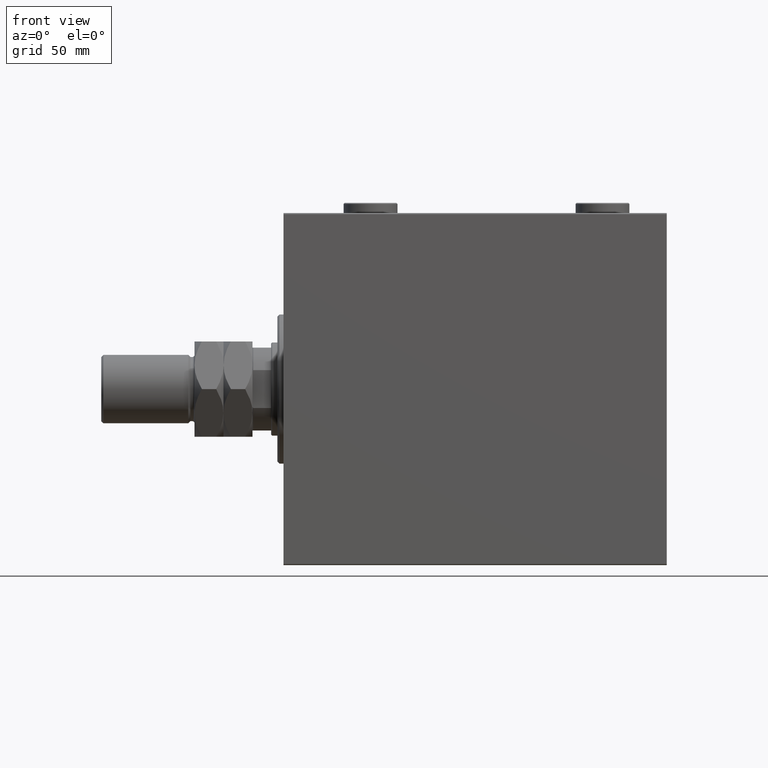
[diagram: clean part render]
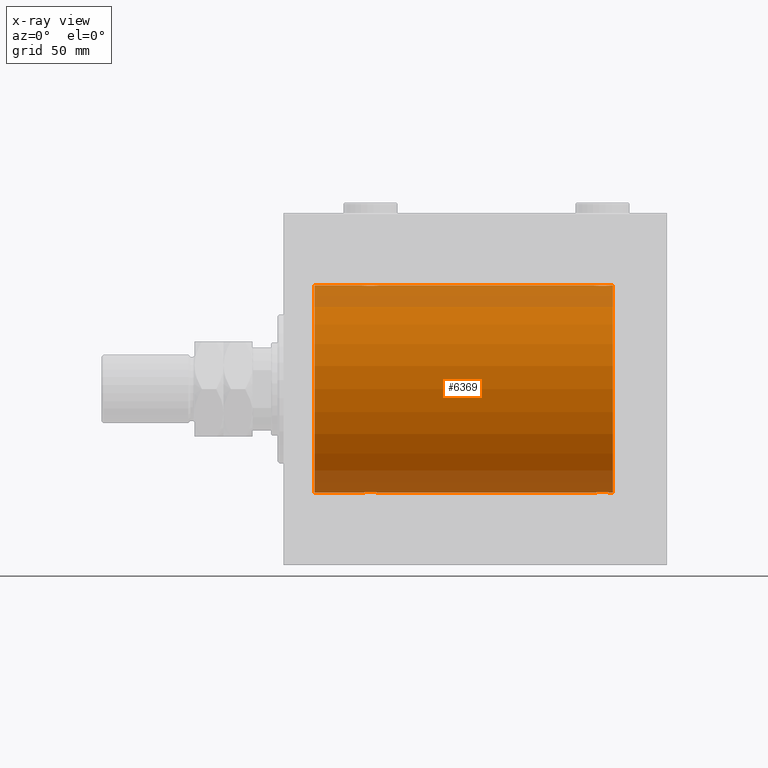
[diagram: x-ray — body ghosted, one internal face saturated and labeled with its STEP entity id]
A machine part, front view, then the same camera in x-ray: the body is ghosted and one INTERNAL B-rep face — a face not visible from any outside direction — is saturated and labeled: STEP entity #6369.
In plain terms, the highlighted cylindrical surface (partial cylindrical patch) has radius 50 mm, axis along (-1, -0, -0).
Its self-contained STEP definition (entity closure, byte-faithful):
#142 = CARTESIAN_POINT ( 'NONE',  ( 155.8874473939280279, -3.818052230167733541, -49.85412671291929598 ) ) ;
#1066 = CARTESIAN_POINT ( 'NONE',  ( 159.0000000000000000, 6.123233995736764507E-15, -50.00000000000000000 ) ) ;
#1262 = CARTESIAN_POINT ( 'NONE',  ( 159.0000000000000000, 0.000000000000000000, 0.000000000000000000 ) ) ;
#1600 = EDGE_CURVE ( 'NONE', #17782, #2535, #21106, .T. ) ;
#2013 = CARTESIAN_POINT ( 'NONE',  ( 149.7500000000000284, -2.480257572105383217E-23, 50.00000000000000000 ) ) ;
#2128 = CARTESIAN_POINT ( 'NONE',  ( 37.77689247200999034, -0.5531336717329051744, 49.99769193709641968 ) ) ;
#2320 = CARTESIAN_POINT ( 'NONE',  ( 159.0000000000000000, 0.000000000000000000, 50.00000000000000000 ) ) ;
#2535 = VERTEX_POINT ( 'NONE', #4960 ) ;
#2607 = CARTESIAN_POINT ( 'NONE',  ( 43.36710647554575360, -4.033756670430856950, 49.83713703490975178 ) ) ;
#2907 = CARTESIAN_POINT ( 'NONE',  ( 157.8183924898787609, -1.886522330773421574, 49.96505190380066352 ) ) ;
#2908 = CARTESIAN_POINT ( 'NONE',  ( 37.75000000000000711, -6.860408820347068034E-15, -50.00000000000000000 ) ) ;
#2950 = DIRECTION ( 'NONE',  ( -1.000000000000000000, -0.000000000000000000, -0.000000000000000000 ) ) ;
#3026 = CARTESIAN_POINT ( 'NONE',  ( 157.2030356195199374, -2.807099414226276402, -49.92152599098507437 ) ) ;
#3124 = ORIENTED_EDGE ( 'NONE', *, *, #37804, .F. ) ;
#3482 = CARTESIAN_POINT ( 'NONE',  ( 157.6893715567939012, -2.128188802142360281, -49.95522967821975158 ) ) ;
#3603 = CARTESIAN_POINT ( 'NONE',  ( 43.10323296034216156, -4.113647494206476907, -49.83052139214892406 ) ) ;
#3623 = B_SPLINE_CURVE_WITH_KNOTS ( 'NONE', 3,
 ( #9316, #30882, #2128, #9785, #23933, #16733, #45507, #5261, #24408, #27059, #39044, #42394, #31373, #13152, #6210, #34504, #24172, #20815, #38336, #35457, #2607, #19858, #27288, #30648, #45278, #41678, #8835, #41918, #9073, #46451, #29167, #28473, #13620, #43793 ),
 .UNSPECIFIED., .F., .F.,
 ( 4, 2, 2, 2, 2, 2, 2, 2, 2, 2, 2, 2, 2, 2, 2, 2, 4 ),
 ( 0.01329343152928754573, 0.01412407817529633125, 0.01495472482130511503, 0.01578537146731389881, 0.01661601811332268433, 0.01744666475933146638, 0.01827731140534025189, 0.01910795805134903741, 0.01993860469735781946, 0.02076925134336660150, 0.02159989798937538702, 0.02243054463538417254, 0.02326119128139295805, 0.02409183792740174357, 0.02492248457341052909, 0.02575313121941931113, 0.02658377786542809318 ),
 .UNSPECIFIED. ) ;
#4129 = CARTESIAN_POINT ( 'NONE',  ( 37.75000000000000711, -2.480809774739037926E-23, 50.00000000000000000 ) ) ;
#4646 = DIRECTION ( 'NONE',  ( -1.000000000000000000, 0.000000000000000000, 0.000000000000000000 ) ) ;
#4960 = CARTESIAN_POINT ( 'NONE',  ( 14.99999999999998579, 0.000000000000000000, 50.00000000000000000 ) ) ;
#5261 = CARTESIAN_POINT ( 'NONE',  ( 38.62118282736263097, -2.593114840406133492, 49.93325460257641168 ) ) ;
#5321 = CARTESIAN_POINT ( 'NONE',  ( 46.03272642097311973, -1.369753890039646205, -49.98188917176552337 ) ) ;
#5558 = CARTESIAN_POINT ( 'NONE',  ( 46.22310752798999545, -0.5531336717328986241, -49.99769193709641968 ) ) ;
#5562 = CARTESIAN_POINT ( 'NONE',  ( 150.6248001591803529, -2.597781786597474607, -49.93300953359122474 ) ) ;
#5793 = CARTESIAN_POINT ( 'NONE',  ( 154.5540856488015606, -4.222816005855221100, 49.82138837911247009 ) ) ;
#5794 = CARTESIAN_POINT ( 'NONE',  ( 46.11431913306008568, -1.101350136471737073, -49.98862054280449740 ) ) ;
#6037 = CARTESIAN_POINT ( 'NONE',  ( 150.7969643804801194, -2.807099414226281286, 49.92152599098507437 ) ) ;
#6210 = CARTESIAN_POINT ( 'NONE',  ( 40.89676703965784554, -4.113647494206489341, 49.83052139214891696 ) ) ;
#6279 = CARTESIAN_POINT ( 'NONE',  ( 38.31397167878050425, -2.133925816755184002, -49.95498245321556396 ) ) ;
#6369 = ADVANCED_FACE ( 'NONE', ( #22097 ), #36734, .F. ) ;
#6502 = CARTESIAN_POINT ( 'NONE',  ( 41.72275072962081310, -4.250219976861639992, -49.81902879621014790 ) ) ;
#6523 = EDGE_CURVE ( 'NONE', #29102, #14435, #23288, .T. ) ;
#6644 = VECTOR ( 'NONE', #2950, 1000.000000000000000 ) ;
#7509 = VECTOR ( 'NONE', #46390, 1000.000000000000000 ) ;
#8026 = CARTESIAN_POINT ( 'NONE',  ( 149.9692020384465536, -1.375411031076046786, -49.98173289062309976 ) ) ;
#8527 = CARTESIAN_POINT ( 'NONE',  ( 37.75000000000000711, -6.860408820347068034E-15, -50.00000000000000000 ) ) ;
#8835 = CARTESIAN_POINT ( 'NONE',  ( 45.37519984081966129, -2.597781786597467946, 49.93300953359122474 ) ) ;
#9073 = CARTESIAN_POINT ( 'NONE',  ( 45.81839248987871116, -1.886522330773416911, 49.96505190380066352 ) ) ;
#9109 = EDGE_LOOP ( 'NONE', ( #12728, #30251, #37856, #17170, #24741, #20608, #23317, #32242, #10023, #3124, #10348, #13469 ) ) ;
#9138 = CARTESIAN_POINT ( 'NONE',  ( 158.2224263552078298, -0.5587117664567151643, 49.99763378604802000 ) ) ;
#9316 = CARTESIAN_POINT ( 'NONE',  ( 37.75000000000000711, -2.480809774739037926E-23, 50.00000000000000000 ) ) ;
#9320 = B_SPLINE_CURVE_WITH_KNOTS ( 'NONE', 3,
 ( #39116, #21111, #31915, #13685, #27597, #27836, #17506, #35747, #6037, #31682, #42464, #34805, #38634, #12729, #20389, #31195, #42223, #20648, #5793, #42934, #17050, #46283, #38400, #35521, #28078, #28310, #10083, #35290, #2907, #24710, #39339, #9138, #9378, #12976 ),
 .UNSPECIFIED., .F., .F.,
 ( 4, 2, 2, 2, 2, 2, 2, 2, 2, 2, 2, 2, 2, 2, 2, 2, 4 ),
 ( 0.01329343152928753879, 0.01412407817529632258, 0.01495472482130510636, 0.01578537146731389187, 0.01661601811332267392, 0.01744666475933145944, 0.01827731140534024495, 0.01910795805134903047, 0.01993860469735781252, 0.02076925134336659456, 0.02159989798937538008, 0.02243054463538416560, 0.02326119128139295111, 0.02409183792740173316, 0.02492248457341051868, 0.02575313121941930072, 0.02658377786542808624 ),
 .UNSPECIFIED. ) ;
#9378 = CARTESIAN_POINT ( 'NONE',  ( 158.2500000000000568, -0.2808785465865649145, 50.00000000000001421 ) ) ;
#9379 = CARTESIAN_POINT ( 'NONE',  ( 45.68937155679385853, -2.128188802142358949, -49.95522967821975158 ) ) ;
#9785 = CARTESIAN_POINT ( 'NONE',  ( 37.88568086693992143, -1.101350136471744845, 49.98862054280449030 ) ) ;
#10023 = ORIENTED_EDGE ( 'NONE', *, *, #41049, .T. ) ;
#10083 = CARTESIAN_POINT ( 'NONE',  ( 157.3751998408196471, -2.597781786597475495, 49.93300953359122474 ) ) ;
#10084 = CARTESIAN_POINT ( 'NONE',  ( 37.75000000000000000, -0.2808785465865690778, -50.00000000000000000 ) ) ;
#10256 = LINE ( 'NONE', #17220, #36744 ) ;
#10348 = ORIENTED_EDGE ( 'NONE', *, *, #41530, .T. ) ;
#10422 = CARTESIAN_POINT ( 'NONE',  ( 158.2500000000000568, -0.2773743941468492791, -50.00000000000000711 ) ) ;
#11119 = CARTESIAN_POINT ( 'NONE',  ( 156.8115306651542369, -3.199146701881672605, -49.89793607725462010 ) ) ;
#11776 = DIRECTION ( 'NONE',  ( 0.000000000000000000, 0.000000000000000000, 1.000000000000000000 ) ) ;
#11794 = EDGE_CURVE ( 'NONE', #14435, #12849, #42298, .T. ) ;
#12160 = EDGE_CURVE ( 'NONE', #41244, #16188, #10256, .T. ) ;
#12467 = VERTEX_POINT ( 'NONE', #22830 ) ;
#12728 = ORIENTED_EDGE ( 'NONE', *, *, #34077, .F. ) ;
#12729 = CARTESIAN_POINT ( 'NONE',  ( 152.6266656342096724, -4.031616700143203502, 49.83731072121799599 ) ) ;
#12849 = VERTEX_POINT ( 'NONE', #8527 ) ;
#12976 = CARTESIAN_POINT ( 'NONE',  ( 158.2500000000000284, 3.884128014896634599E-15, 50.00000000000000000 ) ) ;
#13009 = DIRECTION ( 'NONE',  ( -1.000000000000000000, 0.000000000000000000, 0.000000000000000000 ) ) ;
#13152 = CARTESIAN_POINT ( 'NONE',  ( 40.62666563420964394, -4.031616700143192844, 49.83731072121799599 ) ) ;
#13469 = ORIENTED_EDGE ( 'NONE', *, *, #12160, .F. ) ;
#13482 = CARTESIAN_POINT ( 'NONE',  ( 159.0000000000000000, 0.000000000000000000, 0.000000000000000000 ) ) ;
#13508 = VECTOR ( 'NONE', #26926, 1000.000000000000000 ) ;
#13610 = VECTOR ( 'NONE', #35288, 1000.000000000000000 ) ;
#13620 = CARTESIAN_POINT ( 'NONE',  ( 46.25000000000003553, -0.2808785465865653586, 50.00000000000002842 ) ) ;
#13685 = CARTESIAN_POINT ( 'NONE',  ( 149.8856808669399641, -1.101350136471747510, 49.98862054280448319 ) ) ;
#13686 = CARTESIAN_POINT ( 'NONE',  ( 44.81153066515419425, -3.199146701881665944, -49.89793607725460589 ) ) ;
#14027 = CARTESIAN_POINT ( 'NONE',  ( 152.9026238212096303, -4.115209769591117173, -49.83039196709102470 ) ) ;
#14373 = CARTESIAN_POINT ( 'NONE',  ( 37.88750298919665482, -1.108337267831489559, -49.98846998601261760 ) ) ;
#14435 = VERTEX_POINT ( 'NONE', #46727 ) ;
#14489 = CARTESIAN_POINT ( 'NONE',  ( 150.8007807203871948, -2.811461347331114524, -49.92127983148852621 ) ) ;
#14721 = CARTESIAN_POINT ( 'NONE',  ( 155.3733343657903845, -4.031616700143199949, -49.83731072121799599 ) ) ;
#15923 = VECTOR ( 'NONE', #38619, 1000.000000000000000 ) ;
#16188 = VERTEX_POINT ( 'NONE', #40519 ) ;
#16319 = CARTESIAN_POINT ( 'NONE',  ( 159.0000000000000000, 6.123233995736764507E-15, -50.00000000000000000 ) ) ;
#16733 = CARTESIAN_POINT ( 'NONE',  ( 38.17899418014773261, -1.881229021238126409, 49.96525240872482954 ) ) ;
#17050 = CARTESIAN_POINT ( 'NONE',  ( 155.3671064755457962, -4.033756670430863167, 49.83713703490974467 ) ) ;
#17170 = ORIENTED_EDGE ( 'NONE', *, *, #6523, .T. ) ;
#17220 = CARTESIAN_POINT ( 'NONE',  ( 159.0000000000000000, 0.000000000000000000, 50.00000000000000000 ) ) ;
#17506 = CARTESIAN_POINT ( 'NONE',  ( 150.3106284432061557, -2.128188802142365166, 49.95522967821975158 ) ) ;
#17618 = CARTESIAN_POINT ( 'NONE',  ( 156.5931272088595847, -3.378657745070629215, -49.88595615988430154 ) ) ;
#17782 = VERTEX_POINT ( 'NONE', #25954 ) ;
#17971 = CARTESIAN_POINT ( 'NONE',  ( 40.63289352445426772, -4.033756670430847180, -49.83713703490975888 ) ) ;
#18082 = CARTESIAN_POINT ( 'NONE',  ( 153.4459143511984962, -4.222816005855217547, -49.82138837911247009 ) ) ;
#18205 = CARTESIAN_POINT ( 'NONE',  ( 41.44591435119853173, -4.222816005855205113, -49.82138837911246299 ) ) ;
#19035 = CARTESIAN_POINT ( 'NONE',  ( 150.1816075101212959, -1.886522330773423572, -49.96505190380066352 ) ) ;
#19161 = CARTESIAN_POINT ( 'NONE',  ( 149.7500000000000284, -9.187077631913903382E-15, -50.00000000000000000 ) ) ;
#19858 = CARTESIAN_POINT ( 'NONE',  ( 43.88217049484445198, -3.820681512513388167, 49.85392475515400434 ) ) ;
#20160 = CARTESIAN_POINT ( 'NONE',  ( 150.3139716787804900, -2.133925816755189331, -49.95498245321557818 ) ) ;
#20389 = CARTESIAN_POINT ( 'NONE',  ( 152.8967670396579024, -4.113647494206499111, 49.83052139214891696 ) ) ;
#20608 = ORIENTED_EDGE ( 'NONE', *, *, #33935, .T. ) ;
#20648 = CARTESIAN_POINT ( 'NONE',  ( 154.2772492703792295, -4.250219976861659532, 49.81902879621013369 ) ) ;
#20815 = CARTESIAN_POINT ( 'NONE',  ( 42.27724927037917979, -4.250219976861652427, 49.81902879621014080 ) ) ;
#21106 = CIRCLE ( 'NONE', #30290, 50.00000000000000000 ) ;
#21111 = CARTESIAN_POINT ( 'NONE',  ( 149.7500000000000284, -0.2773743941468553853, 50.00000000000000711 ) ) ;
#21112 = CARTESIAN_POINT ( 'NONE',  ( 38.18160751012128173, -1.886522330773418910, -49.96505190380065642 ) ) ;
#22013 = AXIS2_PLACEMENT_3D ( 'NONE', #1262, #22822, #11776 ) ;
#22097 = FACE_OUTER_BOUND ( 'NONE', #9109, .T. ) ;
#22822 = DIRECTION ( 'NONE',  ( -1.000000000000000000, -0.000000000000000000, -0.000000000000000000 ) ) ;
#22830 = CARTESIAN_POINT ( 'NONE',  ( 158.2500000000000284, 6.123233970934497231E-15, -50.00000000000000000 ) ) ;
#22850 = DIRECTION ( 'NONE',  ( 0.000000000000000000, 0.000000000000000000, 1.000000000000000000 ) ) ;
#23288 = LINE ( 'NONE', #16319, #13610 ) ;
#23317 = ORIENTED_EDGE ( 'NONE', *, *, #1600, .T. ) ;
#23764 = CARTESIAN_POINT ( 'NONE',  ( 149.7500000000000568, -0.2808785465865775155, -50.00000000000001421 ) ) ;
#23933 = CARTESIAN_POINT ( 'NONE',  ( 37.96727357902688027, -1.369753890039653088, 49.98188917176552337 ) ) ;
#24172 = CARTESIAN_POINT ( 'NONE',  ( 41.71604712973303464, -4.249777379711412451, 49.81906655360197078 ) ) ;
#24408 = CARTESIAN_POINT ( 'NONE',  ( 38.79696438048009099, -2.807099414226280842, 49.92152599098507437 ) ) ;
#24710 = CARTESIAN_POINT ( 'NONE',  ( 158.0307979615534464, -1.375411031076043678, 49.98173289062309976 ) ) ;
#24741 = ORIENTED_EDGE ( 'NONE', *, *, #11794, .T. ) ;
#24892 = DIRECTION ( 'NONE',  ( -1.000000000000000000, -0.000000000000000000, -0.000000000000000000 ) ) ;
#24941 = CARTESIAN_POINT ( 'NONE',  ( 43.88744739392799943, -3.818052230167712668, -49.85412671291930309 ) ) ;
#25056 = CARTESIAN_POINT ( 'NONE',  ( 151.8736835512492291, -3.690299572754726309, -49.86386974736159061 ) ) ;
#25417 = CARTESIAN_POINT ( 'NONE',  ( 44.13136399446158009, -3.687400765141523706, -49.86408552998300081 ) ) ;
#25824 = VERTEX_POINT ( 'NONE', #2013 ) ;
#25954 = CARTESIAN_POINT ( 'NONE',  ( 14.99999999999998579, 6.123233995736764507E-15, -50.00000000000000000 ) ) ;
#26206 = CARTESIAN_POINT ( 'NONE',  ( 14.99999999999998579, 0.000000000000000000, 0.000000000000000000 ) ) ;
#26926 = DIRECTION ( 'NONE',  ( -1.000000000000000000, -0.000000000000000000, -0.000000000000000000 ) ) ;
#27059 = CARTESIAN_POINT ( 'NONE',  ( 39.18846933484581285, -3.199146701881677490, 49.89793607725461300 ) ) ;
#27124 = CARTESIAN_POINT ( 'NONE',  ( 46.25000000000000000, 6.123233970928580774E-15, -50.00000000000000000 ) ) ;
#27288 = CARTESIAN_POINT ( 'NONE',  ( 44.12631644875079928, -3.690299572754728974, 49.86386974736159772 ) ) ;
#27575 = CARTESIAN_POINT ( 'NONE',  ( 46.25000000000000000, 5.831099249051096342E-16, 50.00000000000000000 ) ) ;
#27597 = CARTESIAN_POINT ( 'NONE',  ( 149.9672735790268803, -1.369753890039649091, 49.98188917176553048 ) ) ;
#27836 = CARTESIAN_POINT ( 'NONE',  ( 150.1789941801477539, -1.881229021238122856, 49.96525240872482954 ) ) ;
#28078 = CARTESIAN_POINT ( 'NONE',  ( 156.8069783183931349, -3.203153387937327512, 49.89767833571684008 ) ) ;
#28119 = LINE ( 'NONE', #35789, #6644 ) ;
#28310 = CARTESIAN_POINT ( 'NONE',  ( 157.1992192796128620, -2.811461347331109639, 49.92127983148852621 ) ) ;
#28312 = CARTESIAN_POINT ( 'NONE',  ( 45.20303561951990190, -2.807099414226269296, -49.92152599098506016 ) ) ;
#28473 = CARTESIAN_POINT ( 'NONE',  ( 46.22242635520780851, -0.5587117664567116115, 49.99763378604804132 ) ) ;
#28651 = CARTESIAN_POINT ( 'NONE',  ( 152.6328935244542890, -4.033756670430859614, -49.83713703490974467 ) ) ;
#28878 = CARTESIAN_POINT ( 'NONE',  ( 158.0327264209731482, -1.369753890039644650, -49.98188917176553048 ) ) ;
#29002 = CARTESIAN_POINT ( 'NONE',  ( 39.87368355124922203, -3.690299572754720536, -49.86386974736159772 ) ) ;
#29102 = VERTEX_POINT ( 'NONE', #19161 ) ;
#29167 = CARTESIAN_POINT ( 'NONE',  ( 46.11249701080335939, -1.108337267831489781, 49.98846998601261760 ) ) ;
#29343 = CARTESIAN_POINT ( 'NONE',  ( 155.1032329603422397, -4.113647494206488453, -49.83052139214891696 ) ) ;
#29547 = EDGE_CURVE ( 'NONE', #12467, #29102, #35306, .T. ) ;
#30251 = ORIENTED_EDGE ( 'NONE', *, *, #38576, .T. ) ;
#30290 = AXIS2_PLACEMENT_3D ( 'NONE', #26206, #4646, #22850 ) ;
#30648 = CARTESIAN_POINT ( 'NONE',  ( 44.58820214676198646, -3.382416624899788449, 49.88570010427955737 ) ) ;
#30882 = CARTESIAN_POINT ( 'NONE',  ( 37.74999999999999289, -0.2773743941468531649, 50.00000000000000711 ) ) ;
#31056 = LINE ( 'NONE', #31785, #7509 ) ;
#31195 = CARTESIAN_POINT ( 'NONE',  ( 153.4400213230435668, -4.222042462213138947, 49.82145436824653473 ) ) ;
#31373 = CARTESIAN_POINT ( 'NONE',  ( 40.11255260607202899, -3.818052230167725103, 49.85412671291931730 ) ) ;
#31682 = CARTESIAN_POINT ( 'NONE',  ( 151.1884693348458484, -3.199146701881678823, 49.89793607725462010 ) ) ;
#31785 = CARTESIAN_POINT ( 'NONE',  ( 159.0000000000000000, 6.123233995736764507E-15, -50.00000000000000000 ) ) ;
#31915 = CARTESIAN_POINT ( 'NONE',  ( 149.7768924720100472, -0.5531336717329080610, 49.99769193709643389 ) ) ;
#31916 = CARTESIAN_POINT ( 'NONE',  ( 38.80078072038716641, -2.811461347331107863, -49.92127983148850490 ) ) ;
#32242 = ORIENTED_EDGE ( 'NONE', *, *, #34768, .F. ) ;
#32262 = CARTESIAN_POINT ( 'NONE',  ( 158.2500000000000284, 6.123233970934497231E-15, -50.00000000000000000 ) ) ;
#32489 = CARTESIAN_POINT ( 'NONE',  ( 154.5599786769564901, -4.222042462213131842, -49.82145436824653473 ) ) ;
#32606 = CARTESIAN_POINT ( 'NONE',  ( 39.41179785323801354, -3.382416624899781787, -49.88570010427955737 ) ) ;
#32716 = CARTESIAN_POINT ( 'NONE',  ( 151.1930216816069219, -3.203153387937329732, -49.89767833571684008 ) ) ;
#32843 = CARTESIAN_POINT ( 'NONE',  ( 40.90262382120963736, -4.115209769591108291, -49.83039196709104601 ) ) ;
#32959 = CARTESIAN_POINT ( 'NONE',  ( 158.1143191330600359, -1.101350136471741292, -49.98862054280448319 ) ) ;
#33935 = EDGE_CURVE ( 'NONE', #12849, #17782, #34600, .T. ) ;
#34077 = EDGE_CURVE ( 'NONE', #34606, #41244, #44150, .T. ) ;
#34504 = CARTESIAN_POINT ( 'NONE',  ( 41.44002132304353836, -4.222042462213130065, 49.82145436824653473 ) ) ;
#34570 = CARTESIAN_POINT ( 'NONE',  ( 45.82100581985227450, -1.881229021238119081, -49.96525240872482954 ) ) ;
#34574 = CARTESIAN_POINT ( 'NONE',  ( 149.8875029891966619, -1.108337267831501993, -49.98846998601261760 ) ) ;
#34600 = LINE ( 'NONE', #1066, #13508 ) ;
#34606 = VERTEX_POINT ( 'NONE', #46188 ) ;
#34768 = EDGE_CURVE ( 'NONE', #41415, #2535, #28119, .T. ) ;
#34805 = CARTESIAN_POINT ( 'NONE',  ( 151.8686360055384625, -3.687400765141541026, 49.86408552998298660 ) ) ;
#35288 = DIRECTION ( 'NONE',  ( -1.000000000000000000, -0.000000000000000000, -0.000000000000000000 ) ) ;
#35290 = CARTESIAN_POINT ( 'NONE',  ( 157.6860283212195100, -2.133925816755189775, 49.95498245321557818 ) ) ;
#35306 = B_SPLINE_CURVE_WITH_KNOTS ( 'NONE', 3,
 ( #32262, #10422, #35863, #32959, #28878, #43508, #3482, #47101, #3026, #11119, #17618, #46866, #142, #14721, #29343, #32489, #47332, #43966, #18082, #14027, #28651, #43274, #25056, #39685, #32716, #14489, #5562, #20160, #19035, #8026, #34574, #38166, #23764, #40864 ),
 .UNSPECIFIED., .F., .F.,
 ( 4, 2, 2, 2, 2, 2, 2, 2, 2, 2, 2, 2, 2, 2, 2, 2, 4 ),
 ( 0.01329343152928758563, 0.01412407817529637115, 0.01495472482130515667, 0.01578537146731394392, 0.01661601811332272943, 0.01744666475933151495, 0.01827731140534030047, 0.01910795805134908598, 0.01993860469735787150, 0.02076925134336665701, 0.02159989798937544253, 0.02243054463538422805, 0.02326119128139301356, 0.02409183792740179908, 0.02492248457341058460, 0.02575313121941937011, 0.02658377786542815563 ),
 .UNSPECIFIED. ) ;
#35457 = CARTESIAN_POINT ( 'NONE',  ( 43.09737617879038396, -4.115209769591116284, 49.83039196709104601 ) ) ;
#35521 = CARTESIAN_POINT ( 'NONE',  ( 156.5882021467620291, -3.382416624899788893, 49.88570010427955737 ) ) ;
#35522 = CARTESIAN_POINT ( 'NONE',  ( 42.55997867695648296, -4.222042462213118519, -49.82145436824654183 ) ) ;
#35747 = CARTESIAN_POINT ( 'NONE',  ( 150.6211828273626452, -2.593114840406131716, 49.93325460257641168 ) ) ;
#35748 = CARTESIAN_POINT ( 'NONE',  ( 37.77757364479218438, -0.5587117664567147202, -49.99763378604802000 ) ) ;
#35789 = CARTESIAN_POINT ( 'NONE',  ( 159.0000000000000000, 0.000000000000000000, 50.00000000000000000 ) ) ;
#35863 = CARTESIAN_POINT ( 'NONE',  ( 158.2231075279900665, -0.5531336717329021768, -49.99769193709643389 ) ) ;
#36446 = CARTESIAN_POINT ( 'NONE',  ( 43.37333436579037027, -4.031616700143181298, -49.83731072121798178 ) ) ;
#36734 = CYLINDRICAL_SURFACE ( 'NONE', #22013, 50.00000000000000000 ) ;
#36744 = VECTOR ( 'NONE', #24892, 1000.000000000000000 ) ;
#37804 = EDGE_CURVE ( 'NONE', #25824, #44446, #42448, .T. ) ;
#37856 = ORIENTED_EDGE ( 'NONE', *, *, #29547, .T. ) ;
#38166 = CARTESIAN_POINT ( 'NONE',  ( 149.7775736447922554, -0.5587117664567249342, -49.99763378604802710 ) ) ;
#38336 = CARTESIAN_POINT ( 'NONE',  ( 42.55408564880149669, -4.222816005855214883, 49.82138837911247009 ) ) ;
#38400 = CARTESIAN_POINT ( 'NONE',  ( 156.1263164487508277, -3.690299572754730306, 49.86386974736159061 ) ) ;
#38576 = EDGE_CURVE ( 'NONE', #34606, #12467, #31056, .T. ) ;
#38619 = DIRECTION ( 'NONE',  ( -1.000000000000000000, -0.000000000000000000, -0.000000000000000000 ) ) ;
#38634 = CARTESIAN_POINT ( 'NONE',  ( 152.1125526060720290, -3.818052230167736649, 49.85412671291929598 ) ) ;
#39044 = CARTESIAN_POINT ( 'NONE',  ( 39.40687279114045083, -3.378657745070629215, 49.88595615988430154 ) ) ;
#39101 = CARTESIAN_POINT ( 'NONE',  ( 159.0000000000000000, 0.000000000000000000, 50.00000000000000000 ) ) ;
#39116 = CARTESIAN_POINT ( 'NONE',  ( 149.7500000000000284, -2.480257572105383217E-23, 50.00000000000000000 ) ) ;
#39117 = CARTESIAN_POINT ( 'NONE',  ( 42.28395287026698668, -4.249777379711400904, -49.81906655360197789 ) ) ;
#39339 = CARTESIAN_POINT ( 'NONE',  ( 158.1124970108033665, -1.108337267831494222, 49.98846998601261760 ) ) ;
#39565 = CARTESIAN_POINT ( 'NONE',  ( 38.62480015918034582, -2.597781786597466169, -49.93300953359122474 ) ) ;
#39685 = CARTESIAN_POINT ( 'NONE',  ( 151.4117978532380278, -3.382416624899785784, -49.88570010427955737 ) ) ;
#40043 = CARTESIAN_POINT ( 'NONE',  ( 40.11782950515556934, -3.820681512513380618, -49.85392475515399724 ) ) ;
#40519 = CARTESIAN_POINT ( 'NONE',  ( 158.2500000000000284, 3.884128014896634599E-15, 50.00000000000000000 ) ) ;
#40864 = CARTESIAN_POINT ( 'NONE',  ( 149.7500000000000284, -9.187077631913903382E-15, -50.00000000000000000 ) ) ;
#41049 = EDGE_CURVE ( 'NONE', #41415, #44446, #3623, .T. ) ;
#41244 = VERTEX_POINT ( 'NONE', #2320 ) ;
#41415 = VERTEX_POINT ( 'NONE', #4129 ) ;
#41530 = EDGE_CURVE ( 'NONE', #25824, #16188, #9320, .T. ) ;
#41678 = CARTESIAN_POINT ( 'NONE',  ( 45.19921927961284069, -2.811461347331111416, 49.92127983148853332 ) ) ;
#41744 = CARTESIAN_POINT ( 'NONE',  ( 46.24999999999999289, -0.2773743941468468921, -50.00000000000000711 ) ) ;
#41918 = CARTESIAN_POINT ( 'NONE',  ( 45.68602832121950286, -2.133925816755183114, 49.95498245321556396 ) ) ;
#42223 = CARTESIAN_POINT ( 'NONE',  ( 153.7160471297329991, -4.249777379711418668, 49.81906655360197789 ) ) ;
#42298 = B_SPLINE_CURVE_WITH_KNOTS ( 'NONE', 3,
 ( #27124, #41744, #5558, #5794, #5321, #34570, #9379, #42465, #28312, #13686, #47216, #25417, #24941, #36446, #3603, #35522, #39117, #6502, #18205, #32843, #17971, #40043, #29002, #32606, #46751, #31916, #39565, #6279, #21112, #43390, #14373, #35748, #10084, #2908 ),
 .UNSPECIFIED., .F., .F.,
 ( 4, 2, 2, 2, 2, 2, 2, 2, 2, 2, 2, 2, 2, 2, 2, 2, 4 ),
 ( 0.01329343152928756655, 0.01412407817529635033, 0.01495472482130513585, 0.01578537146731391963, 0.01661601811332270515, 0.01744666475933148719, 0.01827731140534027271, 0.01910795805134905823, 0.01993860469735784027, 0.02076925134336662579, 0.02159989798937540784, 0.02243054463538419335, 0.02326119128139297540, 0.02409183792740175745, 0.02492248457341054296, 0.02575313121941932501, 0.02658377786542810706 ),
 .UNSPECIFIED. ) ;
#42394 = CARTESIAN_POINT ( 'NONE',  ( 39.86863600553845544, -3.687400765141536585, 49.86408552998297239 ) ) ;
#42448 = LINE ( 'NONE', #39101, #15923 ) ;
#42464 = CARTESIAN_POINT ( 'NONE',  ( 151.4068727911404153, -3.378657745070632767, 49.88595615988430154 ) ) ;
#42465 = CARTESIAN_POINT ( 'NONE',  ( 45.37881717263736192, -2.593114840406121946, -49.93325460257640458 ) ) ;
#42934 = CARTESIAN_POINT ( 'NONE',  ( 155.0973761787903982, -4.115209769591120725, 49.83039196709102470 ) ) ;
#43274 = CARTESIAN_POINT ( 'NONE',  ( 152.1178295051555835, -3.820681512513392164, -49.85392475515401145 ) ) ;
#43390 = CARTESIAN_POINT ( 'NONE',  ( 37.96920203844656783, -1.375411031076045454, -49.98173289062308555 ) ) ;
#43508 = CARTESIAN_POINT ( 'NONE',  ( 157.8210058198523313, -1.881229021238119081, -49.96525240872482954 ) ) ;
#43793 = CARTESIAN_POINT ( 'NONE',  ( 46.25000000000000000, 5.831099249051096342E-16, 50.00000000000000000 ) ) ;
#43966 = CARTESIAN_POINT ( 'NONE',  ( 153.7227507296208557, -4.250219976861654203, -49.81902879621013369 ) ) ;
#44150 = CIRCLE ( 'NONE', #47193, 50.00000000000000000 ) ;
#44446 = VERTEX_POINT ( 'NONE', #27575 ) ;
#45278 = CARTESIAN_POINT ( 'NONE',  ( 44.80697831839309941, -3.203153387937326180, 49.89767833571684008 ) ) ;
#45507 = CARTESIAN_POINT ( 'NONE',  ( 38.31062844320613436, -2.128188802142368719, 49.95522967821974447 ) ) ;
#45606 = DIRECTION ( 'NONE',  ( 0.000000000000000000, 0.000000000000000000, 1.000000000000000000 ) ) ;
#46188 = CARTESIAN_POINT ( 'NONE',  ( 159.0000000000000000, 6.123233995736764507E-15, -50.00000000000000000 ) ) ;
#46283 = CARTESIAN_POINT ( 'NONE',  ( 155.8821704948444449, -3.820681512513395717, 49.85392475515401145 ) ) ;
#46390 = DIRECTION ( 'NONE',  ( -1.000000000000000000, -0.000000000000000000, -0.000000000000000000 ) ) ;
#46451 = CARTESIAN_POINT ( 'NONE',  ( 46.03079796155343928, -1.375411031076040791, 49.98173289062309976 ) ) ;
#46727 = CARTESIAN_POINT ( 'NONE',  ( 46.25000000000000000, 6.123233970928580774E-15, -50.00000000000000000 ) ) ;
#46751 = CARTESIAN_POINT ( 'NONE',  ( 39.19302168160690769, -3.203153387937319518, -49.89767833571683298 ) ) ;
#46866 = CARTESIAN_POINT ( 'NONE',  ( 156.1313639944615659, -3.687400765141536141, -49.86408552998298660 ) ) ;
#47101 = CARTESIAN_POINT ( 'NONE',  ( 157.3788171726373832, -2.593114840406125055, -49.93325460257641168 ) ) ;
#47193 = AXIS2_PLACEMENT_3D ( 'NONE', #13482, #13009, #45606 ) ;
#47216 = CARTESIAN_POINT ( 'NONE',  ( 44.59312720885956338, -3.378657745070617224, -49.88595615988430154 ) ) ;
#47332 = CARTESIAN_POINT ( 'NONE',  ( 154.2839528702670293, -4.249777379711416003, -49.81906655360197789 ) ) ;